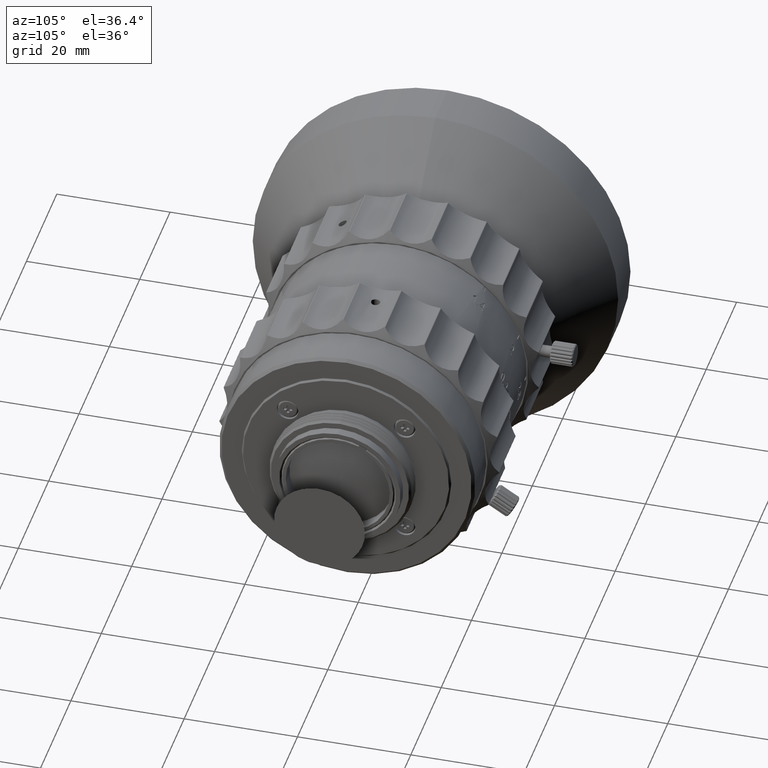
[diagram: clean part render]
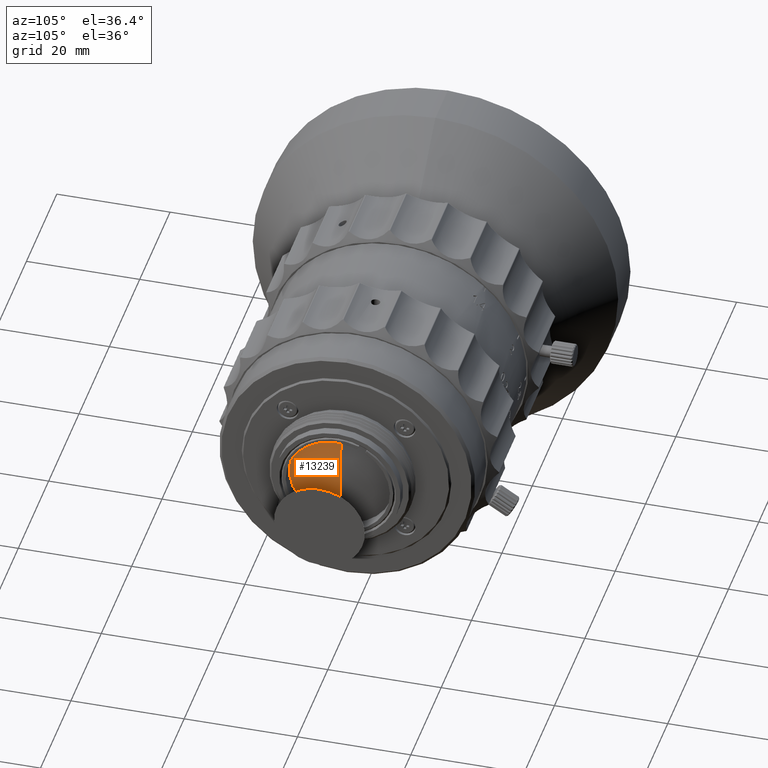
[diagram: same view with one face highlighted and labeled with its STEP entity id]
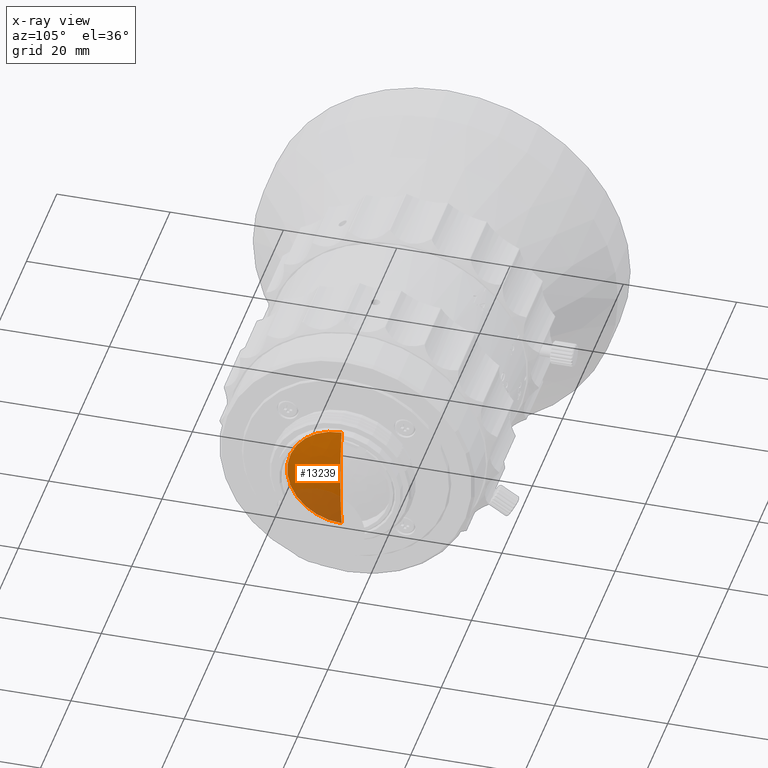
[diagram: x-ray of the same camera — body ghosted, the highlighted face saturated]
A machine part, auxiliary view. The second image highlights one B-rep face of the part: STEP entity #13239.
The next image is the same camera in x-ray: the body ghosted, the highlighted face saturated — about 27% of this face is hidden behind the body in this view.
In plain terms, the highlighted face is a freeform B-spline surface patch.
Its self-contained STEP definition (entity closure, byte-faithful):
#233 = CARTESIAN_POINT ( 'NONE',  ( 31.71876056772654451, -6.436673220593108091, -3.218336941583967548 ) ) ;
#650 = CARTESIAN_POINT ( 'NONE',  ( 31.45271489435191370, -12.85131188043832218, 6.425648211094475926 ) ) ;
#5681 = CIRCLE ( 'NONE', #74631, 9.600000455975509439 ) ;
#10186 = ORIENTED_EDGE ( 'NONE', *, *, #60326, .F. ) ;
#13239 = ADVANCED_FACE ( 'NONE', ( #38742 ), #59603, .T. ) ;
#13779 = CARTESIAN_POINT ( 'NONE',  ( 31.71876056772654451, -6.621199171298174954E-06, 3.218331740726780410 ) ) ;
#14622 = CARTESIAN_POINT ( 'NONE',  ( 31.71876023463826044, -6.100469968741938799E-06, -2.079699387140594520E-06 ) ) ;
#16841 = CIRCLE ( 'NONE', #27670, 58.26457699999974693 ) ;
#17154 = DIRECTION ( 'NONE',  ( 0.9863327619037671745, -2.665920700176334112E-08, 0.1647655388583601777 ) ) ;
#19385 = CARTESIAN_POINT ( 'NONE',  ( 30.92244438820329933, -4.547181572224351839E-06, -9.600002535674772020 ) ) ;
#20554 = CARTESIAN_POINT ( 'NONE',  ( 30.92244438820330643, -19.20000545913232770, -9.600005642251561611 ) ) ;
#21853 = VERTEX_POINT ( 'NONE', #30374 ) ;
#22295 = CIRCLE ( 'NONE', #34491, 58.26457699999974693 ) ;
#27327 = CARTESIAN_POINT ( 'NONE',  ( 31.45271489435191370, -12.85130980108607446, -6.425656529197754097 ) ) ;
#27670 = AXIS2_PLACEMENT_3D ( 'NONE', #41721, #80643, #17154 ) ;
#30374 = CARTESIAN_POINT ( 'NONE',  ( 30.92244438820329577, -7.653758364872186062E-06, 9.599998376275991063 ) ) ;
#33142 = CARTESIAN_POINT ( 'NONE',  ( -26.54581676536116319, -6.100468993214178149E-06, -8.109915394198985612E-06 ) ) ;
#34491 = AXIS2_PLACEMENT_3D ( 'NONE', #33142, #50495, #39467 ) ;
#38742 = FACE_OUTER_BOUND ( 'NONE', #74385, .T. ) ;
#39467 = DIRECTION ( 'NONE',  ( 0.9863327619037671745, 2.665920702757567757E-08, -0.1647655388583601777 ) ) ;
#39576 = CARTESIAN_POINT ( 'NONE',  ( 31.71876023463825689, -6.100469977487209237E-06, -2.079699387140595367E-06 ) ) ;
#40030 = DIRECTION ( 'NONE',  ( 3.614007069962232065E-16, -0.9999999999999868994, -1.618008667910686576E-07 ) ) ;
#41721 = CARTESIAN_POINT ( 'NONE',  ( -26.54581676536116319, -6.100470944602530880E-06, 3.950516611172526982E-06 ) ) ;
#42146 = VERTEX_POINT ( 'NONE', #74889 ) ;
#43024 = EDGE_CURVE ( 'NONE', #21853, #42146, #16841, .T. ) ;
#46782 = CARTESIAN_POINT ( 'NONE',  ( 31.71876023463825689, -6.100469977487207543E-06, -2.079699395885866652E-06 ) ) ;
#49801 = VERTEX_POINT ( 'NONE', #19385 ) ;
#50495 = DIRECTION ( 'NONE',  ( -2.856224572105452640E-18, 0.9999999999999870104, 1.618008669135333693E-07 ) ) ;
#52679 = CARTESIAN_POINT ( 'NONE',  ( 31.45271489435192436, -7.140146093504269058E-06, 6.425650290446725421 ) ) ;
#53094 = CARTESIAN_POINT ( 'NONE',  ( 31.71876056772654451, -5.579740766579832156E-06, -3.218335900125563587 ) ) ;
#53266 = ORIENTED_EDGE ( 'NONE', *, *, #70995, .F. ) ;
#58185 = CARTESIAN_POINT ( 'NONE',  ( 30.92244438820330288, -4.547181572597060736E-06, -9.600002535674770243 ) ) ;
#59460 = CARTESIAN_POINT ( 'NONE',  ( 30.92244438820330288, -7.653758366067025984E-06, 9.599998376275985734 ) ) ;
#59603 =( BOUNDED_SURFACE ( )  B_SPLINE_SURFACE ( 3, 3, ( 
 ( #58185, #20554, #72563, #59460 ),
 ( #72143, #27327, #650, #52679 ),
 ( #53094, #233, #78943, #13779 ),
 ( #66215, #46782, #39576, #14622 ) ),
 .UNSPECIFIED., .F., .F., .T. ) 
 B_SPLINE_SURFACE_WITH_KNOTS ( ( 4, 4 ),
 ( 4, 4 ),
 ( 0.000000000000000000, 1.000000000000000000 ),
 ( 0.000000000000000000, 1.000000000000000000 ),
 .UNSPECIFIED. ) 
 GEOMETRIC_REPRESENTATION_ITEM ( )  RATIONAL_B_SPLINE_SURFACE ( (
 ( 1.000000000000000000, 0.3333333333333334259, 0.3333333333333334259, 1.000000000000000000),
 ( 0.9977182192492881629, 0.3325727397497628135, 0.3325727397497628135, 0.9977182192492881629),
 ( 0.9977182192492881629, 0.3325727397497628135, 0.3325727397497628135, 0.9977182192492881629),
 ( 1.000000000000000000, 0.3333333333333334259, 0.3333333333333334259, 1.000000000000000000) ) ) 
 REPRESENTATION_ITEM ( '' )  SURFACE ( )  );
#60326 = EDGE_CURVE ( 'NONE', #49801, #21853, #5681, .T. ) ;
#64980 = CARTESIAN_POINT ( 'NONE',  ( 30.92244438820329577, -6.100469968708809646E-06, -2.079699391513229739E-06 ) ) ;
#66215 = CARTESIAN_POINT ( 'NONE',  ( 31.71876023463826044, -6.100469968741937105E-06, -2.079699395885865381E-06 ) ) ;
#70995 = EDGE_CURVE ( 'NONE', #42146, #49801, #22295, .T. ) ;
#71332 = DIRECTION ( 'NONE',  ( -1.000000000000000000, -1.798688220621844084E-16, -3.075729254345639017E-23 ) ) ;
#72143 = CARTESIAN_POINT ( 'NONE',  ( 31.45271489435192436, -5.060793844768042053E-06, -6.425654449845509042 ) ) ;
#72563 = CARTESIAN_POINT ( 'NONE',  ( 30.92244438820330643, -19.20000856570911552, 9.599995269699190814 ) ) ;
#74385 = EDGE_LOOP ( 'NONE', ( #81699, #10186, #53266 ) ) ;
#74631 = AXIS2_PLACEMENT_3D ( 'NONE', #64980, #71332, #40030 ) ;
#74889 = CARTESIAN_POINT ( 'NONE',  ( 31.71876023463827110, -6.100469968741937952E-06, -2.079699391513229739E-06 ) ) ;
#78943 = CARTESIAN_POINT ( 'NONE',  ( 31.71876056772654451, -6.436674262051512052, 3.218330699268375117 ) ) ;
#80643 = DIRECTION ( 'NONE',  ( -2.856224572105452640E-18, 0.9999999999999870104, 1.618008667910686841E-07 ) ) ;
#81699 = ORIENTED_EDGE ( 'NONE', *, *, #43024, .F. ) ;